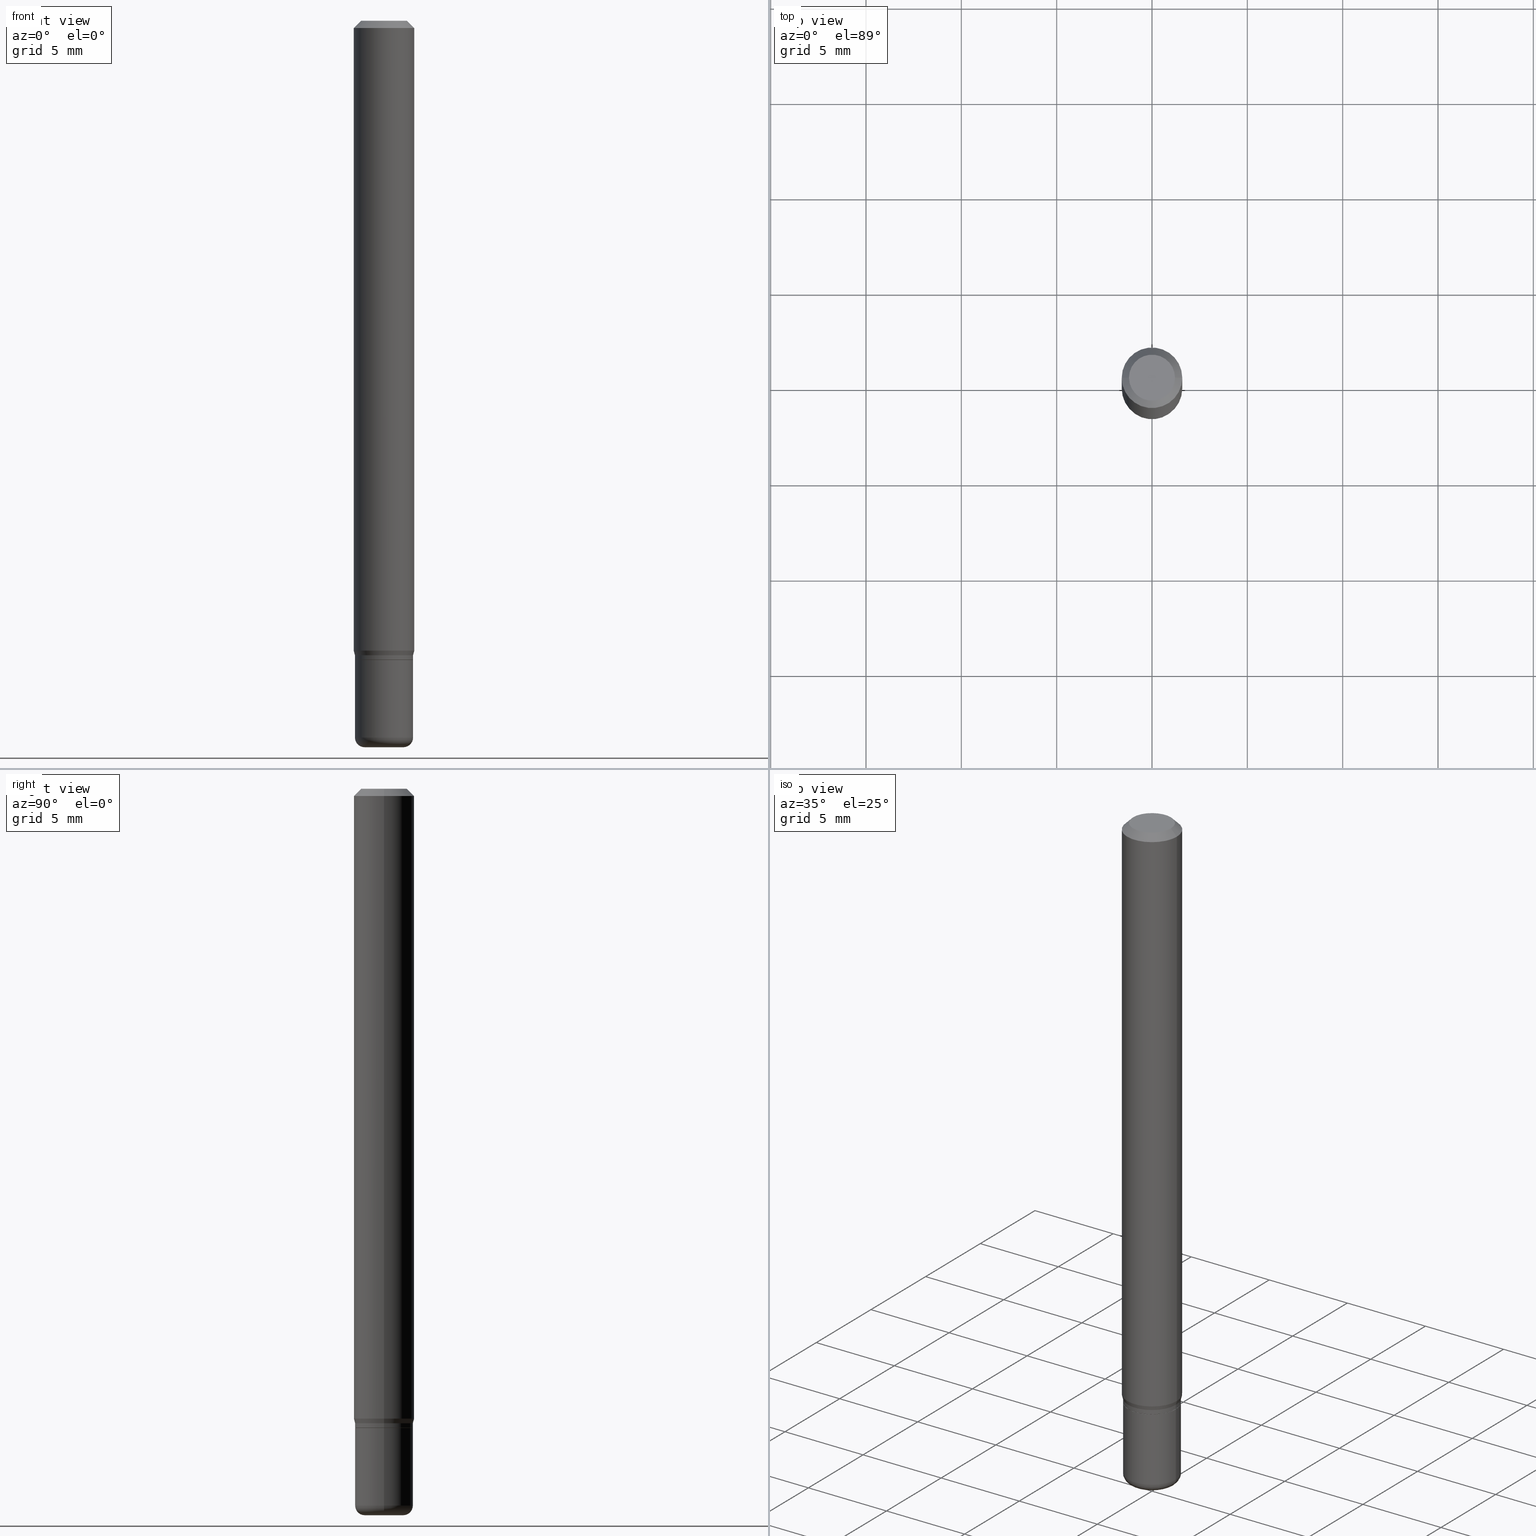
[diagram: canonical four-view strip — front | top / right | iso, engineering-drawing reading convention]
A machine part, canonical four-view strip (front | top / right | iso — engineering-drawing reading convention). The complete STEP part file that produces these views, byte-faithful:
ISO-10303-21;
HEADER;
FILE_DESCRIPTION (( 'STEP AP203' ),
    '1' );
FILE_NAME ('09262.STEP',
    '2024-03-01T00:10:28',
    ( '' ),
    ( '' ),
    'SwSTEP 2.0',
    'SolidWorks 2023',
    '' );
FILE_SCHEMA (( 'CONFIG_CONTROL_DESIGN' ));
ENDSEC;

DATA;
#1 = CONICAL_SURFACE ( 'NONE', #92, 0.06000000000000004635, 0.2617993877991475760 ) ;
#2 = AXIS2_PLACEMENT_3D ( 'NONE', #226, #428, #234 ) ;
#3 = EDGE_CURVE ( 'NONE', #190, #320, #327, .T. ) ;
#4 = DIRECTION ( 'NONE',  ( -2.445468806185136597E-29, 3.491481338843145583E-15, 1.000000000000000000 ) ) ;
#5 = ORIENTED_EDGE ( 'NONE', *, *, #332, .F. ) ;
#6 = PERSON_AND_ORGANIZATION_ROLE ( 'creator' ) ;
#7 = DIRECTION ( 'NONE',  ( -2.445468806185136597E-29, 3.491481338843145583E-15, 1.000000000000000000 ) ) ;
#8 = PERSON_AND_ORGANIZATION ( #432, #207 ) ;
#9 = CARTESIAN_POINT ( 'NONE',  ( 3.203564136102529457E-29, -4.573840553884521577E-15, -1.310000000000000275 ) ) ;
#10 = AXIS2_PLACEMENT_3D ( 'NONE', #9, #165, #411 ) ;
#11 = AXIS2_PLACEMENT_3D ( 'NONE', #112, #272, #430 ) ;
#12 = DIRECTION ( 'NONE',  ( 2.445468806185136597E-29, -3.491481338843145583E-15, -1.000000000000000000 ) ) ;
#13 = CARTESIAN_POINT ( 'NONE',  ( 4.189777606612082375E-16, 0.05999999999999539035, -1.320000000000000506 ) ) ;
#14 = FACE_OUTER_BOUND ( 'NONE', #377, .T. ) ;
#15 = FACE_OUTER_BOUND ( 'NONE', #113, .T. ) ;
#16 = PERSON_AND_ORGANIZATION_ROLE ( 'creator' ) ;
#17 = LINE ( 'NONE', #171, #260 ) ;
#18 = AXIS2_PLACEMENT_3D ( 'NONE', #372, #130, #361 ) ;
#19 = APPROVAL ( #251, 'UNSPECIFIED' ) ;
#20 = AXIS2_PLACEMENT_3D ( 'NONE', #82, #12, #90 ) ;
#21 = CARTESIAN_POINT ( 'NONE',  ( 0.000000000000000000, 0.000000000000000000, 0.000000000000000000 ) ) ;
#22 = CARTESIAN_POINT ( 'NONE',  ( 3.180747601520010727E-29, -4.541264589508919020E-15, -1.300669872981078168 ) ) ;
#23 = ORIENTED_EDGE ( 'NONE', *, *, #64, .F. ) ;
#24 = DIRECTION ( 'NONE',  ( -2.445468806185136597E-29, 3.491481338843145583E-15, 1.000000000000000000 ) ) ;
#25 = CARTESIAN_POINT ( 'NONE',  ( -0.05999999999999999778, -4.461748232924343562E-15, -1.320000000000000062 ) ) ;
#26 = ORIENTED_EDGE ( 'NONE', *, *, #27, .T. ) ;
#27 = EDGE_CURVE ( 'NONE', #314, #474, #74, .T. ) ;
#28 = CARTESIAN_POINT ( 'NONE',  ( 3.668203209277632395E-31, -5.237222008264614861E-17, -0.01499999999999970281 ) ) ;
#29 = CYLINDRICAL_SURFACE ( 'NONE', #188, 0.06000000000000001860 ) ;
#30 = ORIENTED_EDGE ( 'NONE', *, *, #145, .F. ) ;
#31 = EDGE_CURVE ( 'NONE', #462, #218, #486, .T. ) ;
#32 = CARTESIAN_POINT ( 'NONE',  ( -0.06250000000000000000, -1.852729194945719842E-15, -0.01499999999999970281 ) ) ;
#33 = AXIS2_PLACEMENT_3D ( 'NONE', #213, #97, #101 ) ;
#34 = EDGE_LOOP ( 'NONE', ( #296, #442, #347, #60 ) ) ;
#35 = DIRECTION ( 'NONE',  ( 1.000000000000000000, -6.982962677686265922E-15, 4.876176775795935793E-29 ) ) ;
#36 = ORIENTED_EDGE ( 'NONE', *, *, #458, .T. ) ;
#37 = LINE ( 'NONE', #186, #196 ) ;
#38 = EDGE_LOOP ( 'NONE', ( #394, #402, #431, #477 ) ) ;
#39 = CARTESIAN_POINT ( 'NONE',  ( -0.06000000000000004635, -4.122345146043658745E-15, -1.310000000000000275 ) ) ;
#40 = VERTEX_POINT ( 'NONE', #412 ) ;
#41 = VECTOR ( 'NONE', #463, 39.37007874015748143 ) ;
#42 = PERSON_AND_ORGANIZATION ( #432, #207 ) ;
#43 = ORIENTED_EDGE ( 'NONE', *, *, #323, .T. ) ;
#44 = EDGE_CURVE ( 'NONE', #83, #190, #501, .T. ) ;
#45 = DIRECTION ( 'NONE',  ( -0.2588190451025189631, 5.211531920934535265E-15, 0.9659258262890687563 ) ) ;
#46 = CALENDAR_DATE ( 2024, 29, 2 ) ;
#47 = CC_DESIGN_PERSON_AND_ORGANIZATION_ASSIGNMENT ( #8, #6, ( #305 ) ) ;
#48 = DIRECTION ( 'NONE',  ( 1.000000000000000000, -6.982962677686266711E-15, 4.876176775795935793E-29 ) ) ;
#49 = CLOSED_SHELL ( 'NONE', ( #421, #496, #516, #141, #95, #340, #493, #359, #160, #300, #263, #345 ) ) ;
#50 = AXIS2_PLACEMENT_3D ( 'NONE', #128, #287, #450 ) ;
#51 = CIRCLE ( 'NONE', #391, 0.05950000000000001815 ) ;
#52 = CARTESIAN_POINT ( 'NONE',  ( 0.06000000000000001860, -5.025987387264708356E-15, -1.319500000000000117 ) ) ;
#53 = DATE_AND_TIME ( #362, #383 ) ;
#54 = CARTESIAN_POINT ( 'NONE',  ( 0.06000000000000002554, -4.189777606611761900E-16, 2.925706065477562807E-30 ) ) ;
#55 = EDGE_CURVE ( 'NONE', #389, #320, #105, .T. ) ;
#56 = CARTESIAN_POINT ( 'NONE',  ( 0.06000000000000004635, -4.992818314545698211E-15, -1.310000000000000275 ) ) ;
#57 = AXIS2_PLACEMENT_3D ( 'NONE', #175, #293, #457 ) ;
#58 = SHAPE_DEFINITION_REPRESENTATION ( #236, #225 ) ;
#59 = CYLINDRICAL_SURFACE ( 'NONE', #400, 0.06000000000000001860 ) ;
#60 = ORIENTED_EDGE ( 'NONE', *, *, #44, .F. ) ;
#61 = DIRECTION ( 'NONE',  ( -2.445468806185136597E-29, 3.491481338843145583E-15, 1.000000000000000000 ) ) ;
#62 = DATE_AND_TIME ( #220, #198 ) ;
#63 = DIRECTION ( 'NONE',  ( -6.982962677686266711E-15, -1.000000000000000000, 3.491481338843145583E-15 ) ) ;
#64 = EDGE_CURVE ( 'NONE', #499, #190, #17, .T. ) ;
#65 = ORIENTED_EDGE ( 'NONE', *, *, #426, .T. ) ;
#66 = FACE_OUTER_BOUND ( 'NONE', #34, .T. ) ;
#67 = ORIENTED_EDGE ( 'NONE', *, *, #458, .F. ) ;
#68 = ADVANCED_FACE ( 'NONE', ( #15 ), #390, .T. ) ;
#69 = CARTESIAN_POINT ( 'NONE',  ( -0.04000000000000000777, -4.847035826996236908E-15, -1.500000000000000222 ) ) ;
#70 = PRODUCT_DEFINITION ( 'UNKNOWN', '', #305, #500 ) ;
#71 = CARTESIAN_POINT ( 'NONE',  ( 0.05999999999999999778, -5.027733127934128282E-15, -1.320000000000000062 ) ) ;
#72 = ORIENTED_EDGE ( 'NONE', *, *, #210, .T. ) ;
#73 = FACE_OUTER_BOUND ( 'NONE', #307, .T. ) ;
#74 = CIRCLE ( 'NONE', #339, 0.05999999999999999778 ) ;
#75 = VERTEX_POINT ( 'NONE', #202 ) ;
#76 = AXIS2_PLACEMENT_3D ( 'NONE', #351, #514, #153 ) ;
#77 = CARTESIAN_POINT ( 'NONE',  ( -0.06000000000000001860, 4.263256414560602437E-16, -2.951361054152944114E-30 ) ) ;
#78 = ORIENTED_EDGE ( 'NONE', *, *, #384, .F. ) ;
#79 = CARTESIAN_POINT ( 'NONE',  ( 3.228018824164380442E-29, -4.608755367272952437E-15, -1.320000000000000062 ) ) ;
#80 = ORIENTED_EDGE ( 'NONE', *, *, #393, .T. ) ;
#81 = APPLICATION_CONTEXT ( 'configuration controlled 3d designs of mechanical parts and assemblies' ) ;
#82 = CARTESIAN_POINT ( 'NONE',  ( 3.668203209277632395E-31, -5.237222008264614861E-17, -0.01499999999999970281 ) ) ;
#83 = VERTEX_POINT ( 'NONE', #94 ) ;
#84 = CIRCLE ( 'NONE', #187, 0.04000000000000000777 ) ;
#85 = APPROVAL_PERSON_ORGANIZATION ( #133, #475, #380 ) ;
#86 = EDGE_LOOP ( 'NONE', ( #354, #291 ) ) ;
#87 = APPROVAL ( #441, 'UNSPECIFIED' ) ;
#88 = PERSON_AND_ORGANIZATION_ROLE ( 'design_owner' ) ;
#89 = DIRECTION ( 'NONE',  ( 1.000000000000000000, -6.982962677686268288E-15, 0.000000000000000000 ) ) ;
#90 = DIRECTION ( 'NONE',  ( -1.000000000000000000, 6.982962677686266711E-15, 0.000000000000000000 ) ) ;
#91 = CARTESIAN_POINT ( 'NONE',  ( 3.228018824164380442E-29, -4.608755367272952437E-15, -1.320000000000000062 ) ) ;
#92 = AXIS2_PLACEMENT_3D ( 'NONE', #374, #417, #302 ) ;
#93 = CC_DESIGN_APPROVAL ( #19, ( #70 ) ) ;
#94 = CARTESIAN_POINT ( 'NONE',  ( -0.06000000000000001860, -4.180683985147471232E-15, -1.319500000000000117 ) ) ;
#95 = ADVANCED_FACE ( 'NONE', ( #205 ), #288, .T. ) ;
#96 = EDGE_LOOP ( 'NONE', ( #147, #26 ) ) ;
#97 = DIRECTION ( 'NONE',  ( -2.445468806185136597E-29, 3.491481338843145583E-15, 1.000000000000000000 ) ) ;
#98 = CIRCLE ( 'NONE', #231, 0.02000000000000003511 ) ;
#99 = CARTESIAN_POINT ( 'NONE',  ( 0.06250000000000000000, -4.888073874380378612E-16, -0.01499999999999970281 ) ) ;
#100 = COORDINATED_UNIVERSAL_TIME_OFFSET ( 5, 0, .BEHIND. ) ;
#101 = DIRECTION ( 'NONE',  ( 1.000000000000000000, -6.982962677686273810E-15, 0.000000000000000000 ) ) ;
#102 = ORIENTED_EDGE ( 'NONE', *, *, #508, .T. ) ;
#103 = DIRECTION ( 'NONE',  ( 1.000000000000000000, -6.982962677686268288E-15, 0.000000000000000000 ) ) ;
#104 = EDGE_CURVE ( 'NONE', #137, #510, #365, .T. ) ;
#105 = CIRCLE ( 'NONE', #18, 0.06000000000000004635 ) ;
#106 = DIRECTION ( 'NONE',  ( 1.000000000000000000, -6.982962677686266711E-15, 0.000000000000000000 ) ) ;
#107 = ORIENTED_EDGE ( 'NONE', *, *, #104, .F. ) ;
#108 = CC_DESIGN_PERSON_AND_ORGANIZATION_ASSIGNMENT ( #369, #88, ( #308 ) ) ;
#109 = DIRECTION ( 'NONE',  ( 1.000000000000000000, -6.982962677686266711E-15, 0.000000000000000000 ) ) ;
#110 = EDGE_LOOP ( 'NONE', ( #102, #505, #230, #270 ) ) ;
#111 = APPROVAL_DATE_TIME ( #309, #475 ) ;
#112 = CARTESIAN_POINT ( 'NONE',  ( 0.000000000000000000, 0.000000000000000000, 0.000000000000000000 ) ) ;
#113 = EDGE_LOOP ( 'NONE', ( #30, #415, #281, #268 ) ) ;
#114 = AXIS2_PLACEMENT_3D ( 'NONE', #22, #301, #504 ) ;
#115 = LINE ( 'NONE', #353, #290 ) ;
#116 = AXIS2_PLACEMENT_3D ( 'NONE', #197, #306, #35 ) ;
#117 = ORIENTED_EDGE ( 'NONE', *, *, #241, .F. ) ;
#118 = VECTOR ( 'NONE', #151, 39.37007874015748143 ) ;
#119 = CARTESIAN_POINT ( 'NONE',  ( 0.000000000000000000, 0.000000000000000000, 0.000000000000000000 ) ) ;
#120 = ORIENTED_EDGE ( 'NONE', *, *, #508, .F. ) ;
#121 = CARTESIAN_POINT ( 'NONE',  ( 3.226796089761288762E-29, -4.607009626603530934E-15, -1.319500000000000117 ) ) ;
#122 = ORIENTED_EDGE ( 'NONE', *, *, #371, .T. ) ;
#123 = CARTESIAN_POINT ( 'NONE',  ( -0.04750000000000000749, 3.578768372314221353E-16, 2.731847993664239060E-16 ) ) ;
#124 = LINE ( 'NONE', #446, #125 ) ;
#125 = VECTOR ( 'NONE', #45, 39.37007874015748854 ) ;
#126 = MECHANICAL_CONTEXT ( 'NONE', #81, 'mechanical' ) ;
#127 = PLANE ( 'NONE',  #304 ) ;
#128 = CARTESIAN_POINT ( 'NONE',  ( 3.316907271900976589E-16, 0.04750000000000000749, -2.925296391183627249E-17 ) ) ;
#129 = DIRECTION ( 'NONE',  ( 0.000000000000000000, 0.000000000000000000, 1.000000000000000000 ) ) ;
#130 = DIRECTION ( 'NONE',  ( -2.445468806185136597E-29, 3.491481338843145583E-15, 1.000000000000000000 ) ) ;
#131 = AXIS2_PLACEMENT_3D ( 'NONE', #295, #262, #183 ) ;
#132 = CONICAL_SURFACE ( 'NONE', #76, 0.05950000000000001815, 0.7853981633975507526 ) ;
#133 = PERSON_AND_ORGANIZATION ( #432, #207 ) ;
#134 = DIRECTION ( 'NONE',  ( 2.438088387897960049E-29, -3.491481338843145188E-15, -1.000000000000000000 ) ) ;
#135 = MANIFOLD_SOLID_BREP ( 'Body-Move/Copy2[2]', #49 ) ;
#136 = CARTESIAN_POINT ( 'NONE',  ( -6.680649051745406845E-45, 9.538196290434862081E-31, 2.731847993664263218E-16 ) ) ;
#137 = VERTEX_POINT ( 'NONE', #255 ) ;
#138 = ADVANCED_FACE ( 'NONE', ( #257 ), #127, .F. ) ;
#139 = DIRECTION ( 'NONE',  ( 1.000000000000000000, -6.982962677686264344E-15, 0.000000000000000000 ) ) ;
#140 = EDGE_LOOP ( 'NONE', ( #238, #122, #120, #178 ) ) ;
#141 = ADVANCED_FACE ( 'NONE', ( #406 ), #286, .T. ) ;
#142 = AXIS2_PLACEMENT_3D ( 'NONE', #28, #221, #106 ) ;
#143 = DIRECTION ( 'NONE',  ( -2.445468806185136597E-29, 3.491481338843145583E-15, 1.000000000000000000 ) ) ;
#144 = FACE_OUTER_BOUND ( 'NONE', #464, .T. ) ;
#145 = EDGE_CURVE ( 'NONE', #462, #75, #98, .T. ) ;
#146 = DIRECTION ( 'NONE',  ( -2.445468806185136597E-29, 3.491481338843145583E-15, 1.000000000000000000 ) ) ;
#147 = ORIENTED_EDGE ( 'NONE', *, *, #200, .T. ) ;
#148 = DIRECTION ( 'NONE',  ( -2.445468806185136877E-29, 3.491481338843145188E-15, 1.000000000000000000 ) ) ;
#149 = VERTEX_POINT ( 'NONE', #489 ) ;
#150 = PERSON_AND_ORGANIZATION ( #432, #207 ) ;
#151 = DIRECTION ( 'NONE',  ( -0.7071067811866199593, 7.493145998870616062E-15, 0.7071067811864750752 ) ) ;
#152 = EDGE_LOOP ( 'NONE', ( #227, #162 ) ) ;
#153 = DIRECTION ( 'NONE',  ( 1.000000000000000000, -6.982962677686273810E-15, 0.000000000000000000 ) ) ;
#154 = ORIENTED_EDGE ( 'NONE', *, *, #256, .T. ) ;
#155 = EDGE_CURVE ( 'NONE', #389, #280, #124, .T. ) ;
#156 = AXIS2_PLACEMENT_3D ( 'NONE', #21, #24, #420 ) ;
#157 = CYLINDRICAL_SURFACE ( 'NONE', #478, 0.06000000000000002554 ) ;
#158 = CC_DESIGN_APPROVAL ( #87, ( #305 ) ) ;
#159 = ORIENTED_EDGE ( 'NONE', *, *, #55, .T. ) ;
#160 = ADVANCED_FACE ( 'NONE', ( #203 ), #364, .F. ) ;
#161 = DIRECTION ( 'NONE',  ( 1.000000000000000000, -6.982962677686266711E-15, 4.876176775795935793E-29 ) ) ;
#162 = ORIENTED_EDGE ( 'NONE', *, *, #31, .F. ) ;
#163 =( NAMED_UNIT ( * ) SI_UNIT ( $, .STERADIAN. ) SOLID_ANGLE_UNIT ( ) );
#164 = CC_DESIGN_PERSON_AND_ORGANIZATION_ASSIGNMENT ( #170, #16, ( #70 ) ) ;
#165 = DIRECTION ( 'NONE',  ( -2.445468806185136597E-29, 3.491481338843145583E-15, 1.000000000000000000 ) ) ;
#166 = DIRECTION ( 'NONE',  ( -2.445468806185136877E-29, 3.491481338843145188E-15, 1.000000000000000000 ) ) ;
#167 = CLOSED_SHELL ( 'NONE', ( #465, #216, #138, #435, #68, #386 ) ) ;
#168 = VECTOR ( 'NONE', #148, 39.37007874015748143 ) ;
#169 = DIRECTION ( 'NONE',  ( 1.000000000000000000, -6.982962677686265922E-15, 0.000000000000000000 ) ) ;
#170 = PERSON_AND_ORGANIZATION ( #432, #207 ) ;
#171 = CARTESIAN_POINT ( 'NONE',  ( 0.05950000000000001815, -5.024241646595286064E-15, -1.320000000000000062 ) ) ;
#172 = CARTESIAN_POINT ( 'NONE',  ( 3.203564136102529457E-29, -4.573840553884521577E-15, -1.310000000000000275 ) ) ;
#173 = DIRECTION ( 'NONE',  ( -2.445468806185136597E-29, 3.491481338843145583E-15, 1.000000000000000000 ) ) ;
#174 = AXIS2_PLACEMENT_3D ( 'NONE', #331, #490, #485 ) ;
#175 = CARTESIAN_POINT ( 'NONE',  ( 3.668203209277632395E-31, -5.237222008264614861E-17, -0.01499999999999970281 ) ) ;
#176 = CARTESIAN_POINT ( 'NONE',  ( 0.06250000000000000000, -4.811533449433669144E-16, -0.01499999999999970281 ) ) ;
#177 = EDGE_CURVE ( 'NONE', #149, #499, #355, .T. ) ;
#178 = ORIENTED_EDGE ( 'NONE', *, *, #3, .F. ) ;
#179 = UNCERTAINTY_MEASURE_WITH_UNIT (LENGTH_MEASURE( 1.000000000000000082E-05 ), #447, 'distance_accuracy_value', 'NONE');
#180 = DIRECTION ( 'NONE',  ( 1.000000000000000000, -6.982962677686266711E-15, 4.876176775795935793E-29 ) ) ;
#181 = ORIENTED_EDGE ( 'NONE', *, *, #397, .F. ) ;
#182 = CIRCLE ( 'NONE', #242, 0.06250000000000000000 ) ;
#183 = DIRECTION ( 'NONE',  ( 1.000000000000000000, -6.982962677686265922E-15, 4.876176775795935793E-29 ) ) ;
#184 = ORIENTED_EDGE ( 'NONE', *, *, #440, .F. ) ;
#185 = CARTESIAN_POINT ( 'NONE',  ( 3.180747601520010727E-29, -4.541264589508919020E-15, -1.300669872981078168 ) ) ;
#186 = CARTESIAN_POINT ( 'NONE',  ( -0.06000000000000002554, 4.263256414560602930E-16, -2.951361054152944464E-30 ) ) ;
#187 = AXIS2_PLACEMENT_3D ( 'NONE', #378, #143, #224 ) ;
#188 = AXIS2_PLACEMENT_3D ( 'NONE', #119, #269, #476 ) ;
#189 = CARTESIAN_POINT ( 'NONE',  ( -0.05950000000000001815, -4.185982439495692846E-15, -1.320000000000000062 ) ) ;
#190 = VERTEX_POINT ( 'NONE', #52 ) ;
#191 = PERSON_AND_ORGANIZATION_ROLE ( 'classification_officer' ) ;
#192 = CARTESIAN_POINT ( 'NONE',  ( -0.06250000000000000000, 3.840629472727455270E-16, -0.01499999999999970281 ) ) ;
#193 = VERTEX_POINT ( 'NONE', #209 ) ;
#194 = LINE ( 'NONE', #77, #470 ) ;
#195 = ORIENTED_EDGE ( 'NONE', *, *, #397, .T. ) ;
#196 = VECTOR ( 'NONE', #387, 39.37007874015748143 ) ;
#197 = CARTESIAN_POINT ( 'NONE',  ( 3.582686580359766038E-29, -5.359686688179453325E-15, -1.500000000000000222 ) ) ;
#198 = LOCAL_TIME ( 19, 10, 28.00000000000000000, #100 ) ;
#199 = ORIENTED_EDGE ( 'NONE', *, *, #426, .F. ) ;
#200 = EDGE_CURVE ( 'NONE', #474, #314, #297, .T. ) ;
#201 = APPROVAL_DATE_TIME ( #204, #87 ) ;
#202 = CARTESIAN_POINT ( 'NONE',  ( -0.06000000000000003247, -4.461748232924343562E-15, -1.479999999999999982 ) ) ;
#203 = FACE_OUTER_BOUND ( 'NONE', #86, .T. ) ;
#204 = DATE_AND_TIME ( #46, #356 ) ;
#205 = FACE_OUTER_BOUND ( 'NONE', #110, .T. ) ;
#206 = VECTOR ( 'NONE', #166, 39.37007874015748143 ) ;
#207 = ORGANIZATION ( 'UNSPECIFIED', 'UNSPECIFIED', '' ) ;
#208 = CARTESIAN_POINT ( 'NONE',  ( 0.05950000000000001815, -5.024241646595286064E-15, -1.320000000000000062 ) ) ;
#209 = CARTESIAN_POINT ( 'NONE',  ( 0.06000000000000003247, -5.586370142149031512E-15, -1.479999999999999982 ) ) ;
#210 = EDGE_CURVE ( 'NONE', #396, #303, #468, .T. ) ;
#211 = DATE_TIME_ROLE ( 'creation_date' ) ;
#212 = CARTESIAN_POINT ( 'NONE',  ( 3.228018824164380442E-29, -4.608755367272952437E-15, -1.320000000000000062 ) ) ;
#213 = CARTESIAN_POINT ( 'NONE',  ( 3.228018824164380442E-29, -4.608755367272952437E-15, -1.320000000000000062 ) ) ;
#214 = CONICAL_SURFACE ( 'NONE', #57, 0.06250000000000000000, 0.7853981633974488341 ) ;
#215 =( GEOMETRIC_REPRESENTATION_CONTEXT ( 3 ) GLOBAL_UNCERTAINTY_ASSIGNED_CONTEXT ( ( #179 ) ) GLOBAL_UNIT_ASSIGNED_CONTEXT ( ( #447, #453, #163 ) ) REPRESENTATION_CONTEXT ( 'NONE', 'WORKASPACE' ) );
#216 = ADVANCED_FACE ( 'NONE', ( #264 ), #59, .T. ) ;
#217 = DIRECTION ( 'NONE',  ( 1.000000000000000000, -6.982962677686266711E-15, 4.852736867747365086E-29 ) ) ;
#218 = VERTEX_POINT ( 'NONE', #336 ) ;
#219 = CYLINDRICAL_SURFACE ( 'NONE', #156, 0.06000000000000002554 ) ;
#220 = CALENDAR_DATE ( 2024, 29, 2 ) ;
#221 = DIRECTION ( 'NONE',  ( -2.445468806185136597E-29, 3.491481338843145583E-15, 1.000000000000000000 ) ) ;
#222 = CIRCLE ( 'NONE', #425, 0.02000000000000003511 ) ;
#223 = CC_DESIGN_SECURITY_CLASSIFICATION ( #427, ( #305 ) ) ;
#224 = DIRECTION ( 'NONE',  ( 1.000000000000000000, -6.982962677686258033E-15, 0.000000000000000000 ) ) ;
#225 = ADVANCED_BREP_SHAPE_REPRESENTATION ( '09262', ( #310, #135, #434 ), #215 ) ;
#226 = CARTESIAN_POINT ( 'NONE',  ( 3.619293833154002365E-29, -5.167392381487854879E-15, -1.479999999999999982 ) ) ;
#227 = ORIENTED_EDGE ( 'NONE', *, *, #258, .F. ) ;
#228 = EDGE_CURVE ( 'NONE', #320, #40, #299, .T. ) ;
#229 = FACE_OUTER_BOUND ( 'NONE', #515, .T. ) ;
#230 = ORIENTED_EDGE ( 'NONE', *, *, #256, .F. ) ;
#231 = AXIS2_PLACEMENT_3D ( 'NONE', #368, #329, #322 ) ;
#232 = CC_DESIGN_DATE_AND_TIME_ASSIGNMENT ( #62, #419, ( #427 ) ) ;
#233 = CIRCLE ( 'NONE', #487, 0.06000000000000004635 ) ;
#234 = DIRECTION ( 'NONE',  ( 1.000000000000000000, -6.982962677686264344E-15, 4.883557194083111780E-29 ) ) ;
#235 = ORIENTED_EDGE ( 'NONE', *, *, #384, .T. ) ;
#236 = PRODUCT_DEFINITION_SHAPE ( 'NONE', 'NONE',  #70 ) ;
#237 = CARTESIAN_POINT ( 'NONE',  ( 0.000000000000000000, 0.000000000000000000, 0.000000000000000000 ) ) ;
#238 = ORIENTED_EDGE ( 'NONE', *, *, #440, .T. ) ;
#239 = DIRECTION ( 'NONE',  ( -2.445468806185136597E-29, 3.491481338843145583E-15, 1.000000000000000000 ) ) ;
#240 = ORIENTED_EDGE ( 'NONE', *, *, #443, .T. ) ;
#241 = EDGE_CURVE ( 'NONE', #137, #303, #498, .T. ) ;
#242 = AXIS2_PLACEMENT_3D ( 'NONE', #185, #502, #461 ) ;
#243 =( LENGTH_UNIT ( ) NAMED_UNIT ( * ) SI_UNIT ( $, .METRE. ) );
#244 = VECTOR ( 'NONE', #357, 39.37007874015748143 ) ;
#245 = ORIENTED_EDGE ( 'NONE', *, *, #27, .F. ) ;
#246 = DIRECTION ( 'NONE',  ( -2.445468806185136597E-29, 3.491481338843145583E-15, 1.000000000000000000 ) ) ;
#247 = EDGE_CURVE ( 'NONE', #510, #137, #509, .T. ) ;
#248 = COORDINATED_UNIVERSAL_TIME_OFFSET ( 5, 0, .BEHIND. ) ;
#249 = DIRECTION ( 'NONE',  ( -2.445468806185136597E-29, 3.491481338843145583E-15, 1.000000000000000000 ) ) ;
#250 = APPLICATION_CONTEXT ( 'configuration controlled 3d designs of mechanical parts and assemblies' ) ;
#251 = APPROVAL_STATUS ( 'not_yet_approved' ) ;
#252 = DIRECTION ( 'NONE',  ( -2.445468806185136597E-29, 3.491481338843145583E-15, 1.000000000000000000 ) ) ;
#253 = CIRCLE ( 'NONE', #276, 0.06250000000000000000 ) ;
#254 = APPROVAL_DATE_TIME ( #333, #19 ) ;
#255 = CARTESIAN_POINT ( 'NONE',  ( 0.04750000000000000749, -4.035134999187568762E-16, 2.731847993664288856E-16 ) ) ;
#256 = EDGE_CURVE ( 'NONE', #40, #280, #182, .T. ) ;
#257 = FACE_OUTER_BOUND ( 'NONE', #96, .T. ) ;
#258 = EDGE_CURVE ( 'NONE', #218, #462, #84, .T. ) ;
#259 = CARTESIAN_POINT ( 'NONE',  ( 0.04000000000000000083, -5.446710888595305705E-15, -1.479999999999999982 ) ) ;
#260 = VECTOR ( 'NONE', #289, 39.37007874015748143 ) ;
#261 = CONICAL_SURFACE ( 'NONE', #20, 0.06250000000000000000, 0.7853981633974488341 ) ;
#262 = DIRECTION ( 'NONE',  ( -2.438088387897960049E-29, 3.491481338843145188E-15, 1.000000000000000000 ) ) ;
#263 = ADVANCED_FACE ( 'NONE', ( #66 ), #274, .T. ) ;
#264 = FACE_OUTER_BOUND ( 'NONE', #469, .T. ) ;
#265 = EDGE_LOOP ( 'NONE', ( #480, #382, #80, #497 ) ) ;
#266 = CARTESIAN_POINT ( 'NONE',  ( 0.000000000000000000, 0.000000000000000000, 0.000000000000000000 ) ) ;
#267 = DIRECTION ( 'NONE',  ( -2.445468806185136597E-29, 3.491481338843145583E-15, 1.000000000000000000 ) ) ;
#268 = ORIENTED_EDGE ( 'NONE', *, *, #323, .F. ) ;
#269 = DIRECTION ( 'NONE',  ( -2.445468806185136597E-29, 3.491481338843145583E-15, 1.000000000000000000 ) ) ;
#270 = ORIENTED_EDGE ( 'NONE', *, *, #228, .F. ) ;
#271 = CC_DESIGN_DATE_AND_TIME_ASSIGNMENT ( #53, #211, ( #70 ) ) ;
#272 = DIRECTION ( 'NONE',  ( -2.445468806185136597E-29, 3.491481338843145583E-15, 1.000000000000000000 ) ) ;
#273 = ORIENTED_EDGE ( 'NONE', *, *, #200, .F. ) ;
#274 = CONICAL_SURFACE ( 'NONE', #33, 0.05950000000000001815, 0.7853981633975507526 ) ;
#275 = AXIS2_PLACEMENT_3D ( 'NONE', #136, #423, #217 ) ;
#276 = AXIS2_PLACEMENT_3D ( 'NONE', #317, #479, #109 ) ;
#277 = DIRECTION ( 'NONE',  ( 1.000000000000000000, -6.982962677686272233E-15, 0.000000000000000000 ) ) ;
#278 = ORIENTED_EDGE ( 'NONE', *, *, #403, .F. ) ;
#279 = DIRECTION ( 'NONE',  ( -2.445468806185136597E-29, 3.491481338843145583E-15, 1.000000000000000000 ) ) ;
#280 = VERTEX_POINT ( 'NONE', #344 ) ;
#281 = ORIENTED_EDGE ( 'NONE', *, *, #363, .T. ) ;
#282 = AXIS2_PLACEMENT_3D ( 'NONE', #337, #61, #139 ) ;
#283 = DIRECTION ( 'NONE',  ( 1.000000000000000000, 0.000000000000000000, 0.000000000000000000 ) ) ;
#284 = DIRECTION ( 'NONE',  ( -2.445468806185136597E-29, 3.491481338843145583E-15, 1.000000000000000000 ) ) ;
#285 = SECURITY_CLASSIFICATION_LEVEL ( 'unclassified' ) ;
#286 = CYLINDRICAL_SURFACE ( 'NONE', #460, 0.06250000000000000000 ) ;
#287 = DIRECTION ( 'NONE',  ( 2.438088387897960049E-29, -3.491481338843145188E-15, -1.000000000000000000 ) ) ;
#288 = CONICAL_SURFACE ( 'NONE', #10, 0.06000000000000004635, 0.2617993877991475760 ) ;
#289 = DIRECTION ( 'NONE',  ( 0.7071067811866199593, -2.468850131083015945E-15, 0.7071067811864750752 ) ) ;
#290 = VECTOR ( 'NONE', #438, 39.37007874015748143 ) ;
#291 = ORIENTED_EDGE ( 'NONE', *, *, #104, .T. ) ;
#292 = EDGE_CURVE ( 'NONE', #193, #75, #348, .T. ) ;
#293 = DIRECTION ( 'NONE',  ( 2.445468806185136597E-29, -3.491481338843145583E-15, -1.000000000000000000 ) ) ;
#294 = ORIENTED_EDGE ( 'NONE', *, *, #177, .F. ) ;
#295 = CARTESIAN_POINT ( 'NONE',  ( 3.228018824164380442E-29, -4.608755367272952437E-15, -1.320000000000000062 ) ) ;
#296 = ORIENTED_EDGE ( 'NONE', *, *, #482, .F. ) ;
#297 = CIRCLE ( 'NONE', #315, 0.05999999999999999778 ) ;
#298 = CIRCLE ( 'NONE', #367, 0.06000000000000001860 ) ;
#299 = LINE ( 'NONE', #381, #413 ) ;
#300 = ADVANCED_FACE ( 'NONE', ( #495 ), #506, .F. ) ;
#301 = DIRECTION ( 'NONE',  ( -2.445468806185136597E-29, 3.491481338843145583E-15, 1.000000000000000000 ) ) ;
#302 = DIRECTION ( 'NONE',  ( 1.000000000000000000, -6.982962677686262766E-15, 0.000000000000000000 ) ) ;
#303 = VERTEX_POINT ( 'NONE', #99 ) ;
#304 = AXIS2_PLACEMENT_3D ( 'NONE', #13, #134, #370 ) ;
#305 = PRODUCT_DEFINITION_FORMATION_WITH_SPECIFIED_SOURCE ( 'ANY', '', #308, .NOT_KNOWN. ) ;
#306 = DIRECTION ( 'NONE',  ( -2.438088387897960049E-29, 3.491481338843145188E-15, 1.000000000000000000 ) ) ;
#307 = EDGE_LOOP ( 'NONE', ( #36, #318, #184, #23 ) ) ;
#308 = PRODUCT ( '09262', '09262', '', ( #126 ) ) ;
#309 = DATE_AND_TIME ( #459, #375 ) ;
#310 = MANIFOLD_SOLID_BREP ( 'Body-Move/Copy2[1]', #167 ) ;
#311 = FACE_OUTER_BOUND ( 'NONE', #265, .T. ) ;
#312 = ORIENTED_EDGE ( 'NONE', *, *, #292, .T. ) ;
#313 = CARTESIAN_POINT ( 'NONE',  ( 0.06250000000000000000, -4.364351673553916694E-16, 3.047610484872459871E-30 ) ) ;
#314 = VERTEX_POINT ( 'NONE', #25 ) ;
#315 = AXIS2_PLACEMENT_3D ( 'NONE', #414, #467, #103 ) ;
#316 = LOCAL_TIME ( 19, 10, 28.00000000000000000, #321 ) ;
#317 = CARTESIAN_POINT ( 'NONE',  ( 3.668203209277632395E-31, -5.237222008264614861E-17, -0.01499999999999970281 ) ) ;
#318 = ORIENTED_EDGE ( 'NONE', *, *, #482, .T. ) ;
#319 = DIRECTION ( 'NONE',  ( 1.000000000000000000, -6.982962677686265922E-15, 0.000000000000000000 ) ) ;
#320 = VERTEX_POINT ( 'NONE', #56 ) ;
#321 = COORDINATED_UNIVERSAL_TIME_OFFSET ( 5, 0, .BEHIND. ) ;
#322 = DIRECTION ( 'NONE',  ( -1.000000000000000000, 7.105427357601009747E-15, 0.000000000000000000 ) ) ;
#323 = EDGE_CURVE ( 'NONE', #75, #193, #373, .T. ) ;
#324 = CIRCLE ( 'NONE', #114, 0.06250000000000000000 ) ;
#325 = PERSON_AND_ORGANIZATION_ROLE ( 'design_supplier' ) ;
#326 = APPROVAL_PERSON_ORGANIZATION ( #42, #87, #488 ) ;
#327 = LINE ( 'NONE', #54, #206 ) ;
#328 = CC_DESIGN_PERSON_AND_ORGANIZATION_ASSIGNMENT ( #150, #191, ( #427 ) ) ;
#329 = DIRECTION ( 'NONE',  ( 7.105427357601001859E-15, 1.000000000000000000, -3.491481338843145583E-15 ) ) ;
#330 = DIRECTION ( 'NONE',  ( 1.000000000000000000, -6.982962677686262766E-15, 0.000000000000000000 ) ) ;
#331 = CARTESIAN_POINT ( 'NONE',  ( 3.668203209277704895E-29, -5.237222008264718177E-15, -1.500000000000000222 ) ) ;
#332 = EDGE_CURVE ( 'NONE', #280, #40, #324, .T. ) ;
#333 = DATE_AND_TIME ( #401, #316 ) ;
#334 = AXIS2_PLACEMENT_3D ( 'NONE', #494, #173, #335 ) ;
#335 = DIRECTION ( 'NONE',  ( 1.000000000000000000, -6.982962677686266711E-15, 4.852736867747365086E-29 ) ) ;
#336 = CARTESIAN_POINT ( 'NONE',  ( 0.04000000000000000777, -5.516540515372169003E-15, -1.500000000000000222 ) ) ;
#337 = CARTESIAN_POINT ( 'NONE',  ( 3.619293833154002365E-29, -5.167392381487854879E-15, -1.479999999999999982 ) ) ;
#338 = DIRECTION ( 'NONE',  ( 0.2588190451025189631, 1.565188264969641295E-15, 0.9659258262890687563 ) ) ;
#339 = AXIS2_PLACEMENT_3D ( 'NONE', #212, #284, #89 ) ;
#340 = ADVANCED_FACE ( 'NONE', ( #144 ), #1, .T. ) ;
#341 = TOROIDAL_SURFACE ( 'NONE', #2, 0.04000000000000000083, 0.02000000000000003511 ) ;
#342 = CARTESIAN_POINT ( 'NONE',  ( 3.619293833154002365E-29, -5.167392381487854879E-15, -1.479999999999999982 ) ) ;
#343 = ORIENTED_EDGE ( 'NONE', *, *, #247, .F. ) ;
#344 = CARTESIAN_POINT ( 'NONE',  ( -0.06250000000000000000, -4.097175379658856404E-15, -1.300669872981078168 ) ) ;
#345 = ADVANCED_FACE ( 'NONE', ( #466 ), #219, .T. ) ;
#346 = FACE_OUTER_BOUND ( 'NONE', #152, .T. ) ;
#347 = ORIENTED_EDGE ( 'NONE', *, *, #64, .T. ) ;
#348 = CIRCLE ( 'NONE', #282, 0.06000000000000003247 ) ;
#349 = FACE_OUTER_BOUND ( 'NONE', #140, .T. ) ;
#350 = EDGE_LOOP ( 'NONE', ( #117, #343, #195, #72 ) ) ;
#351 = CARTESIAN_POINT ( 'NONE',  ( 3.228018824164380442E-29, -4.608755367272952437E-15, -1.320000000000000062 ) ) ;
#352 = EDGE_LOOP ( 'NONE', ( #154, #240, #199, #513 ) ) ;
#353 = CARTESIAN_POINT ( 'NONE',  ( -0.06250000000000000000, 4.440892098500626162E-16, -3.074334431409316114E-30 ) ) ;
#354 = ORIENTED_EDGE ( 'NONE', *, *, #247, .T. ) ;
#355 = CIRCLE ( 'NONE', #433, 0.05950000000000001815 ) ;
#356 = LOCAL_TIME ( 19, 10, 28.00000000000000000, #248 ) ;
#357 = DIRECTION ( 'NONE',  ( -0.7071067811865479058, 2.468850131082261005E-15, -0.7071067811865471286 ) ) ;
#358 = ORIENTED_EDGE ( 'NONE', *, *, #228, .T. ) ;
#359 = ADVANCED_FACE ( 'NONE', ( #376 ), #214, .T. ) ;
#360 = CARTESIAN_POINT ( 'NONE',  ( 0.000000000000000000, 0.000000000000000000, 0.000000000000000000 ) ) ;
#361 = DIRECTION ( 'NONE',  ( 1.000000000000000000, -6.982962677686262766E-15, 0.000000000000000000 ) ) ;
#362 = CALENDAR_DATE ( 2024, 29, 2 ) ;
#363 = EDGE_CURVE ( 'NONE', #218, #193, #222, .T. ) ;
#364 = PLANE ( 'NONE',  #50 ) ;
#365 = CIRCLE ( 'NONE', #334, 0.04750000000000000749 ) ;
#366 = PERSON_AND_ORGANIZATION ( #432, #207 ) ;
#367 = AXIS2_PLACEMENT_3D ( 'NONE', #121, #279, #319 ) ;
#368 = CARTESIAN_POINT ( 'NONE',  ( -0.04000000000000000083, -4.883175287183815341E-15, -1.479999999999999982 ) ) ;
#369 = PERSON_AND_ORGANIZATION ( #432, #207 ) ;
#370 = DIRECTION ( 'NONE',  ( -1.000000000000000000, 6.982962677686265922E-15, -4.876176775795935793E-29 ) ) ;
#371 = EDGE_CURVE ( 'NONE', #83, #389, #37, .T. ) ;
#372 = CARTESIAN_POINT ( 'NONE',  ( 3.203564136102529457E-29, -4.573840553884521577E-15, -1.310000000000000275 ) ) ;
#373 = CIRCLE ( 'NONE', #451, 0.06000000000000003247 ) ;
#374 = CARTESIAN_POINT ( 'NONE',  ( 3.203564136102529457E-29, -4.573840553884521577E-15, -1.310000000000000275 ) ) ;
#375 = LOCAL_TIME ( 19, 10, 28.00000000000000000, #456 ) ;
#376 = FACE_OUTER_BOUND ( 'NONE', #350, .T. ) ;
#377 = EDGE_LOOP ( 'NONE', ( #107, #518, #65, #181 ) ) ;
#378 = CARTESIAN_POINT ( 'NONE',  ( 3.668203209277704895E-29, -5.237222008264718177E-15, -1.500000000000000222 ) ) ;
#379 = PRODUCT_RELATED_PRODUCT_CATEGORY ( 'detail', '', ( #308 ) ) ;
#380 = APPROVAL_ROLE ( '' ) ;
#381 = CARTESIAN_POINT ( 'NONE',  ( 0.06000000000000004635, -4.992818314545698211E-15, -1.310000000000000275 ) ) ;
#382 = ORIENTED_EDGE ( 'NONE', *, *, #332, .T. ) ;
#383 = LOCAL_TIME ( 19, 10, 28.00000000000000000, #492 ) ;
#384 = EDGE_CURVE ( 'NONE', #193, #474, #517, .T. ) ;
#385 = DIRECTION ( 'NONE',  ( 1.000000000000000000, -6.982962677686264344E-15, 0.000000000000000000 ) ) ;
#386 = ADVANCED_FACE ( 'NONE', ( #346 ), #392, .F. ) ;
#387 = DIRECTION ( 'NONE',  ( -2.445468806185136877E-29, 3.491481338843145188E-15, 1.000000000000000000 ) ) ;
#388 = LINE ( 'NONE', #189, #118 ) ;
#389 = VERTEX_POINT ( 'NONE', #39 ) ;
#390 = TOROIDAL_SURFACE ( 'NONE', #407, 0.04000000000000000083, 0.02000000000000003511 ) ;
#391 = AXIS2_PLACEMENT_3D ( 'NONE', #79, #239, #398 ) ;
#392 = PLANE ( 'NONE',  #116 ) ;
#393 = EDGE_CURVE ( 'NONE', #40, #303, #507, .T. ) ;
#394 = ORIENTED_EDGE ( 'NONE', *, *, #371, .F. ) ;
#395 = LINE ( 'NONE', #192, #244 ) ;
#396 = VERTEX_POINT ( 'NONE', #32 ) ;
#397 = EDGE_CURVE ( 'NONE', #510, #396, #395, .T. ) ;
#398 = DIRECTION ( 'NONE',  ( 1.000000000000000000, -6.982962677686273810E-15, 0.000000000000000000 ) ) ;
#399 = ORIENTED_EDGE ( 'NONE', *, *, #155, .F. ) ;
#400 = AXIS2_PLACEMENT_3D ( 'NONE', #266, #267, #180 ) ;
#401 = CALENDAR_DATE ( 2024, 29, 2 ) ;
#402 = ORIENTED_EDGE ( 'NONE', *, *, #44, .T. ) ;
#403 = EDGE_CURVE ( 'NONE', #75, #314, #194, .T. ) ;
#404 = DIRECTION ( 'NONE',  ( 1.000000000000000000, -6.982962677686264344E-15, 4.883557194083111780E-29 ) ) ;
#405 = APPLICATION_PROTOCOL_DEFINITION ( 'international standard', 'config_control_design', 1994, #81 ) ;
#406 = FACE_OUTER_BOUND ( 'NONE', #352, .T. ) ;
#407 = AXIS2_PLACEMENT_3D ( 'NONE', #455, #7, #404 ) ;
#408 = APPROVAL_ROLE ( '' ) ;
#409 = DIRECTION ( 'NONE',  ( 1.000000000000000000, -6.982962677686273810E-15, 0.000000000000000000 ) ) ;
#410 = DIRECTION ( 'NONE',  ( -2.445468806185136597E-29, 3.491481338843145583E-15, 1.000000000000000000 ) ) ;
#411 = DIRECTION ( 'NONE',  ( 1.000000000000000000, -6.982962677686262766E-15, 0.000000000000000000 ) ) ;
#412 = CARTESIAN_POINT ( 'NONE',  ( 0.06250000000000000000, -4.977699756864310689E-15, -1.300669872981078168 ) ) ;
#413 = VECTOR ( 'NONE', #338, 39.37007874015748854 ) ;
#414 = CARTESIAN_POINT ( 'NONE',  ( 3.228018824164380442E-29, -4.608755367272952437E-15, -1.320000000000000062 ) ) ;
#415 = ORIENTED_EDGE ( 'NONE', *, *, #31, .T. ) ;
#416 = CC_DESIGN_PERSON_AND_ORGANIZATION_ASSIGNMENT ( #366, #325, ( #305 ) ) ;
#417 = DIRECTION ( 'NONE',  ( -2.445468806185136597E-29, 3.491481338843145583E-15, 1.000000000000000000 ) ) ;
#418 = ORIENTED_EDGE ( 'NONE', *, *, #145, .T. ) ;
#419 = DATE_TIME_ROLE ( 'classification_date' ) ;
#420 = DIRECTION ( 'NONE',  ( 1.000000000000000000, -6.982962677686266711E-15, 4.876176775795935793E-29 ) ) ;
#421 = ADVANCED_FACE ( 'NONE', ( #349 ), #157, .T. ) ;
#422 = EDGE_LOOP ( 'NONE', ( #67, #294 ) ) ;
#423 = DIRECTION ( 'NONE',  ( -2.445468806185136597E-29, 3.491481338843145583E-15, 1.000000000000000000 ) ) ;
#424 = DIMENSIONAL_EXPONENTS ( 1.000000000000000000, 0.000000000000000000, 0.000000000000000000, 0.000000000000000000, 0.000000000000000000, 0.000000000000000000, 0.000000000000000000 ) ;
#425 = AXIS2_PLACEMENT_3D ( 'NONE', #259, #63, #277 ) ;
#426 = EDGE_CURVE ( 'NONE', #303, #396, #253, .T. ) ;
#427 = SECURITY_CLASSIFICATION ( '', '', #285 ) ;
#428 = DIRECTION ( 'NONE',  ( -2.445468806185136597E-29, 3.491481338843145583E-15, 1.000000000000000000 ) ) ;
#429 = ORIENTED_EDGE ( 'NONE', *, *, #403, .T. ) ;
#430 = DIRECTION ( 'NONE',  ( 1.000000000000000000, -6.982962677686266711E-15, 4.876176775795935793E-29 ) ) ;
#431 = ORIENTED_EDGE ( 'NONE', *, *, #3, .T. ) ;
#432 = PERSON ( 'UNSPECIFIED', 'UNSPECIFIED', 'UNSPECIFIED', ('UNSPECIFIED'), ('UNSPECIFIED'), ('UNSPECIFIED') ) ;
#433 = AXIS2_PLACEMENT_3D ( 'NONE', #91, #252, #409 ) ;
#434 = AXIS2_PLACEMENT_3D ( 'NONE', #360, #129, #283 ) ;
#435 = ADVANCED_FACE ( 'NONE', ( #229 ), #29, .T. ) ;
#436 = DIRECTION ( 'NONE',  ( -2.445468806185136877E-29, 3.491481338843145188E-15, 1.000000000000000000 ) ) ;
#437 = ORIENTED_EDGE ( 'NONE', *, *, #258, .T. ) ;
#438 = DIRECTION ( 'NONE',  ( -2.445468806185136877E-29, 3.491481338843145188E-15, 1.000000000000000000 ) ) ;
#439 = ORIENTED_EDGE ( 'NONE', *, *, #363, .F. ) ;
#440 = EDGE_CURVE ( 'NONE', #190, #83, #298, .T. ) ;
#441 = APPROVAL_STATUS ( 'not_yet_approved' ) ;
#442 = ORIENTED_EDGE ( 'NONE', *, *, #177, .T. ) ;
#443 = EDGE_CURVE ( 'NONE', #280, #396, #115, .T. ) ;
#444 = VECTOR ( 'NONE', #436, 39.37007874015748143 ) ;
#445 = LENGTH_MEASURE_WITH_UNIT ( LENGTH_MEASURE( 0.02539999999999999897 ), #243 );
#446 = CARTESIAN_POINT ( 'NONE',  ( -0.06000000000000004635, -4.147514912428461087E-15, -1.310000000000000275 ) ) ;
#447 =( CONVERSION_BASED_UNIT ( 'INCH', #445 ) LENGTH_UNIT ( ) NAMED_UNIT ( #424 ) );
#448 = CARTESIAN_POINT ( 'NONE',  ( 0.000000000000000000, 0.000000000000000000, 0.000000000000000000 ) ) ;
#449 = APPLICATION_PROTOCOL_DEFINITION ( 'international standard', 'config_control_design', 1994, #250 ) ;
#450 = DIRECTION ( 'NONE',  ( -1.000000000000000000, 6.982962677686265922E-15, -4.876176775795935793E-29 ) ) ;
#451 = AXIS2_PLACEMENT_3D ( 'NONE', #342, #146, #385 ) ;
#452 = CC_DESIGN_APPROVAL ( #475, ( #427 ) ) ;
#453 =( NAMED_UNIT ( * ) PLANE_ANGLE_UNIT ( ) SI_UNIT ( $, .RADIAN. ) );
#454 = CARTESIAN_POINT ( 'NONE',  ( 3.226796089761288762E-29, -4.607009626603530934E-15, -1.319500000000000117 ) ) ;
#455 = CARTESIAN_POINT ( 'NONE',  ( 3.619293833154002365E-29, -5.167392381487854879E-15, -1.479999999999999982 ) ) ;
#456 = COORDINATED_UNIVERSAL_TIME_OFFSET ( 5, 0, .BEHIND. ) ;
#457 = DIRECTION ( 'NONE',  ( -1.000000000000000000, 6.982962677686266711E-15, 0.000000000000000000 ) ) ;
#458 = EDGE_CURVE ( 'NONE', #499, #149, #51, .T. ) ;
#459 = CALENDAR_DATE ( 2024, 29, 2 ) ;
#460 = AXIS2_PLACEMENT_3D ( 'NONE', #448, #249, #48 ) ;
#461 = DIRECTION ( 'NONE',  ( 1.000000000000000000, -6.982962677686262766E-15, 0.000000000000000000 ) ) ;
#462 = VERTEX_POINT ( 'NONE', #69 ) ;
#463 = DIRECTION ( 'NONE',  ( 0.7071067811865479058, -7.319954787623257623E-15, -0.7071067811865471286 ) ) ;
#464 = EDGE_LOOP ( 'NONE', ( #399, #159, #358, #5 ) ) ;
#465 = ADVANCED_FACE ( 'NONE', ( #481 ), #341, .T. ) ;
#466 = FACE_OUTER_BOUND ( 'NONE', #38, .T. ) ;
#467 = DIRECTION ( 'NONE',  ( -2.445468806185136597E-29, 3.491481338843145583E-15, 1.000000000000000000 ) ) ;
#468 = CIRCLE ( 'NONE', #142, 0.06250000000000000000 ) ;
#469 = EDGE_LOOP ( 'NONE', ( #312, #429, #273, #78 ) ) ;
#470 = VECTOR ( 'NONE', #512, 39.37007874015748143 ) ;
#471 = CARTESIAN_POINT ( 'NONE',  ( 0.06000000000000001860, -4.189777606611761407E-16, 2.925706065477562457E-30 ) ) ;
#472 = EDGE_LOOP ( 'NONE', ( #437, #418, #483, #439 ) ) ;
#473 = CYLINDRICAL_SURFACE ( 'NONE', #11, 0.06250000000000000000 ) ;
#474 = VERTEX_POINT ( 'NONE', #71 ) ;
#475 = APPROVAL ( #511, 'UNSPECIFIED' ) ;
#476 = DIRECTION ( 'NONE',  ( 1.000000000000000000, -6.982962677686266711E-15, 4.876176775795935793E-29 ) ) ;
#477 = ORIENTED_EDGE ( 'NONE', *, *, #55, .F. ) ;
#478 = AXIS2_PLACEMENT_3D ( 'NONE', #237, #4, #161 ) ;
#479 = DIRECTION ( 'NONE',  ( -2.445468806185136597E-29, 3.491481338843145583E-15, 1.000000000000000000 ) ) ;
#480 = ORIENTED_EDGE ( 'NONE', *, *, #443, .F. ) ;
#481 = FACE_OUTER_BOUND ( 'NONE', #472, .T. ) ;
#482 = EDGE_CURVE ( 'NONE', #149, #83, #388, .T. ) ;
#483 = ORIENTED_EDGE ( 'NONE', *, *, #292, .F. ) ;
#484 = PERSON_AND_ORGANIZATION ( #432, #207 ) ;
#485 = DIRECTION ( 'NONE',  ( 1.000000000000000000, -6.982962677686258033E-15, 0.000000000000000000 ) ) ;
#486 = CIRCLE ( 'NONE', #174, 0.04000000000000000777 ) ;
#487 = AXIS2_PLACEMENT_3D ( 'NONE', #172, #410, #330 ) ;
#488 = APPROVAL_ROLE ( '' ) ;
#489 = CARTESIAN_POINT ( 'NONE',  ( -0.05950000000000001815, -4.183333212321581645E-15, -1.320000000000000062 ) ) ;
#490 = DIRECTION ( 'NONE',  ( -2.445468806185136597E-29, 3.491481338843145583E-15, 1.000000000000000000 ) ) ;
#491 = AXIS2_PLACEMENT_3D ( 'NONE', #454, #246, #169 ) ;
#492 = COORDINATED_UNIVERSAL_TIME_OFFSET ( 5, 0, .BEHIND. ) ;
#493 = ADVANCED_FACE ( 'NONE', ( #311 ), #473, .T. ) ;
#494 = CARTESIAN_POINT ( 'NONE',  ( -6.680649051745406845E-45, 9.538196290434862081E-31, 2.731847993664263218E-16 ) ) ;
#495 = FACE_OUTER_BOUND ( 'NONE', #422, .T. ) ;
#496 = ADVANCED_FACE ( 'NONE', ( #73 ), #132, .T. ) ;
#497 = ORIENTED_EDGE ( 'NONE', *, *, #210, .F. ) ;
#498 = LINE ( 'NONE', #176, #41 ) ;
#499 = VERTEX_POINT ( 'NONE', #208 ) ;
#500 = DESIGN_CONTEXT ( 'detailed design', #250, 'design' ) ;
#501 = CIRCLE ( 'NONE', #491, 0.06000000000000001860 ) ;
#502 = DIRECTION ( 'NONE',  ( -2.445468806185136597E-29, 3.491481338843145583E-15, 1.000000000000000000 ) ) ;
#503 = APPROVAL_PERSON_ORGANIZATION ( #484, #19, #408 ) ;
#504 = DIRECTION ( 'NONE',  ( 1.000000000000000000, -6.982962677686262766E-15, 0.000000000000000000 ) ) ;
#505 = ORIENTED_EDGE ( 'NONE', *, *, #155, .T. ) ;
#506 = PLANE ( 'NONE',  #131 ) ;
#507 = LINE ( 'NONE', #313, #168 ) ;
#508 = EDGE_CURVE ( 'NONE', #320, #389, #233, .T. ) ;
#509 = CIRCLE ( 'NONE', #275, 0.04750000000000000749 ) ;
#510 = VERTEX_POINT ( 'NONE', #123 ) ;
#511 = APPROVAL_STATUS ( 'not_yet_approved' ) ;
#512 = DIRECTION ( 'NONE',  ( -2.445468806185136877E-29, 3.491481338843145188E-15, 1.000000000000000000 ) ) ;
#513 = ORIENTED_EDGE ( 'NONE', *, *, #393, .F. ) ;
#514 = DIRECTION ( 'NONE',  ( -2.445468806185136597E-29, 3.491481338843145583E-15, 1.000000000000000000 ) ) ;
#515 = EDGE_LOOP ( 'NONE', ( #278, #43, #235, #245 ) ) ;
#516 = ADVANCED_FACE ( 'NONE', ( #14 ), #261, .T. ) ;
#517 = LINE ( 'NONE', #471, #444 ) ;
#518 = ORIENTED_EDGE ( 'NONE', *, *, #241, .T. ) ;
ENDSEC;
END-ISO-10303-21;
